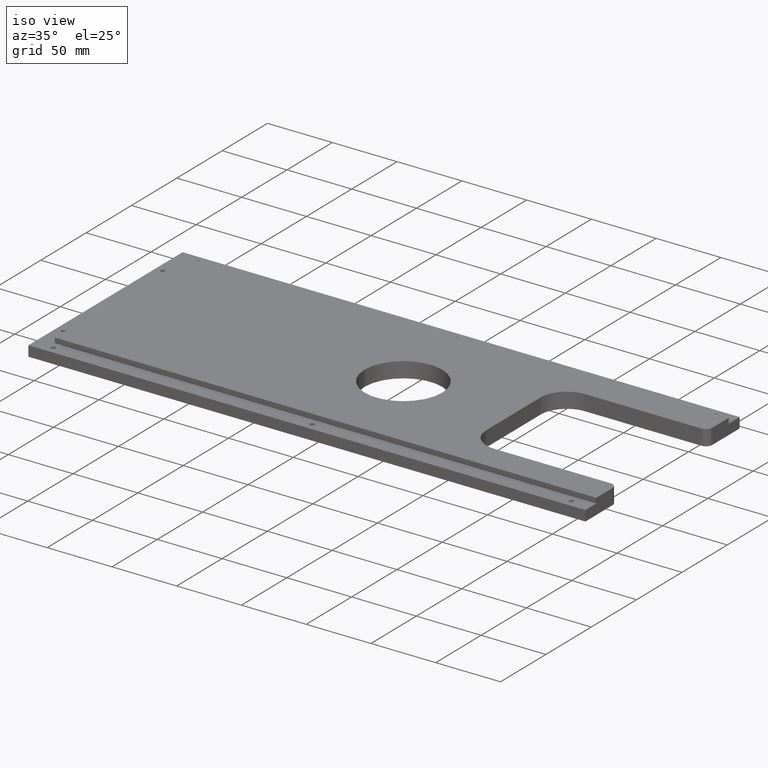
[diagram: clean part render]
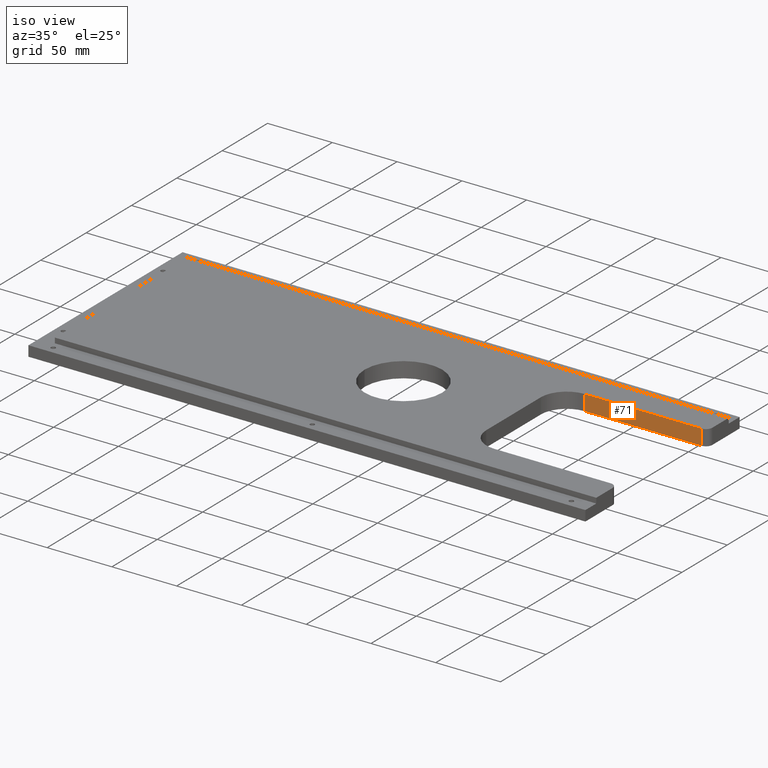
[diagram: same view with one face highlighted and labeled with its STEP entity id]
A machine part, iso view. The second image highlights one B-rep face of the part: STEP entity #71.
In plain terms, the highlighted planar face has unit normal (-0, 1, 0).
Its self-contained STEP definition (entity closure, byte-faithful):
#48 = LINE ( 'NONE', #737, #404 ) ;
#59 = EDGE_CURVE ( 'NONE', #1076, #343, #48, .T. ) ;
#71 = ADVANCED_FACE ( 'NONE', ( #663 ), #274, .F. ) ;
#74 = DIRECTION ( 'NONE',  ( -1.000000000000000000, -1.460819769243627100E-016, 0.0000000000000000000 ) ) ;
#79 = DIRECTION ( 'NONE',  ( -1.460819769243627100E-016, 1.000000000000000000, 0.0000000000000000000 ) ) ;
#144 = ORIENTED_EDGE ( 'NONE', *, *, #59, .T. ) ;
#169 = CARTESIAN_POINT ( 'NONE',  ( 214.9999999999999700, 50.00000000000000000, -6.000000000000000000 ) ) ;
#183 = DIRECTION ( 'NONE',  ( 0.0000000000000000000, 0.0000000000000000000, 1.000000000000000000 ) ) ;
#204 = DIRECTION ( 'NONE',  ( 1.000000000000000000, 1.460819769243627100E-016, 0.0000000000000000000 ) ) ;
#236 = AXIS2_PLACEMENT_3D ( 'NONE', #1145, #79, #74 ) ;
#237 = VERTEX_POINT ( 'NONE', #276 ) ;
#274 = PLANE ( 'NONE',  #236 ) ;
#276 = CARTESIAN_POINT ( 'NONE',  ( 119.9999999999999700, 49.99999999999998600, 6.000000000000000000 ) ) ;
#343 = VERTEX_POINT ( 'NONE', #551 ) ;
#360 = DIRECTION ( 'NONE',  ( -1.000000000000000000, -1.460819769243627100E-016, 0.0000000000000000000 ) ) ;
#368 = CARTESIAN_POINT ( 'NONE',  ( 214.9999999999999700, 50.00000000000000000, 6.000000000000000000 ) ) ;
#383 = LINE ( 'NONE', #1121, #894 ) ;
#398 = EDGE_CURVE ( 'NONE', #892, #1076, #1213, .T. ) ;
#404 = VECTOR ( 'NONE', #183, 1000.000000000000000 ) ;
#484 = ORIENTED_EDGE ( 'NONE', *, *, #398, .T. ) ;
#547 = ORIENTED_EDGE ( 'NONE', *, *, #969, .F. ) ;
#551 = CARTESIAN_POINT ( 'NONE',  ( 209.9999999999999700, 50.00000000000000000, 6.000000000000000000 ) ) ;
#570 = CARTESIAN_POINT ( 'NONE',  ( 209.9999999999999700, 50.00000000000000000, -6.000000000000000000 ) ) ;
#581 = EDGE_LOOP ( 'NONE', ( #484, #144, #797, #547 ) ) ;
#663 = FACE_OUTER_BOUND ( 'NONE', #581, .T. ) ;
#737 = CARTESIAN_POINT ( 'NONE',  ( 209.9999999999999700, 50.00000000000000000, -6.001000000000001200 ) ) ;
#747 = VECTOR ( 'NONE', #360, 1000.000000000000000 ) ;
#775 = EDGE_CURVE ( 'NONE', #343, #237, #1010, .T. ) ;
#797 = ORIENTED_EDGE ( 'NONE', *, *, #775, .T. ) ;
#892 = VERTEX_POINT ( 'NONE', #981 ) ;
#894 = VECTOR ( 'NONE', #961, 1000.000000000000000 ) ;
#961 = DIRECTION ( 'NONE',  ( -0.0000000000000000000, -0.0000000000000000000, 1.000000000000000000 ) ) ;
#969 = EDGE_CURVE ( 'NONE', #892, #237, #383, .T. ) ;
#981 = CARTESIAN_POINT ( 'NONE',  ( 119.9999999999999700, 49.99999999999998600, -6.000000000000000000 ) ) ;
#1010 = LINE ( 'NONE', #368, #747 ) ;
#1036 = VECTOR ( 'NONE', #204, 1000.000000000000000 ) ;
#1076 = VERTEX_POINT ( 'NONE', #570 ) ;
#1121 = CARTESIAN_POINT ( 'NONE',  ( 119.9999999999999700, 49.99999999999998600, -6.001000000000001200 ) ) ;
#1145 = CARTESIAN_POINT ( 'NONE',  ( 214.9999999999999700, 50.00000000000000000, -6.001000000000001200 ) ) ;
#1213 = LINE ( 'NONE', #169, #1036 ) ;